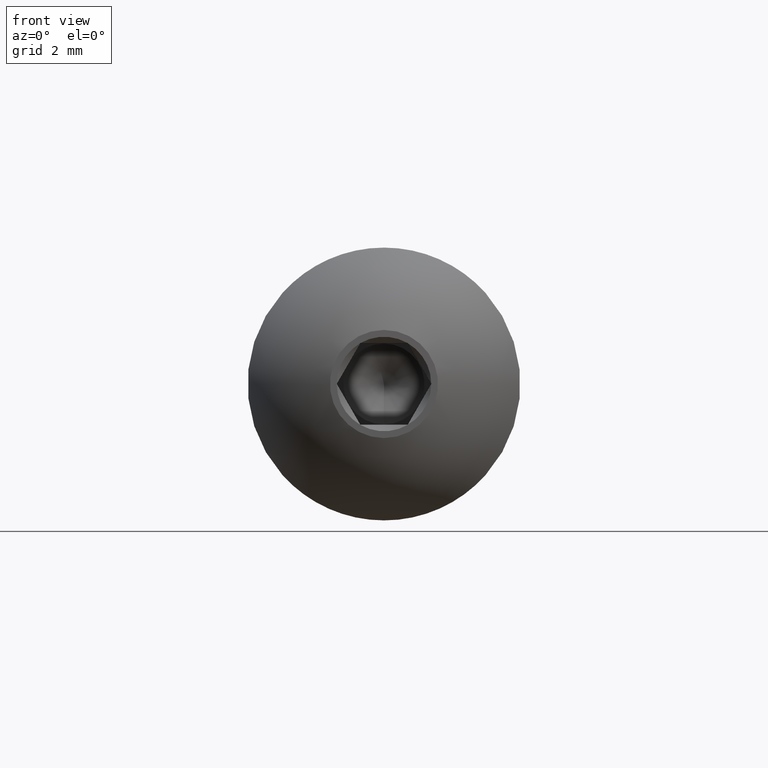
[diagram: clean part render]
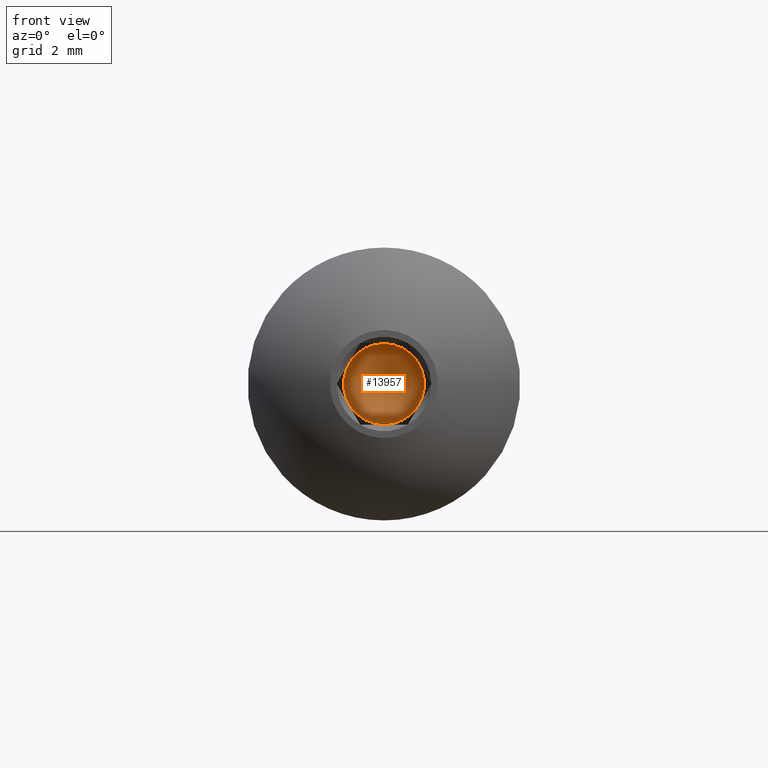
[diagram: same view with one face highlighted and labeled with its STEP entity id]
A machine part, front view. The second image highlights one B-rep face of the part: STEP entity #13957.
In plain terms, the highlighted conical surface has half-angle 59 deg.
Its self-contained STEP definition (entity closure, byte-faithful):
#62 = CONICAL_SURFACE ( 'NONE', #1173, 1.484999999999999400, 1.029744258676657400 ) ;
#318 = CARTESIAN_POINT ( 'NONE',  ( 0.0000000000000000000, 1.749999999999999800, 0.0000000000000000000 ) ) ;
#1173 = AXIS2_PLACEMENT_3D ( 'NONE', #1545, #10669, #11841 ) ;
#1429 = DIRECTION ( 'NONE',  ( 0.0000000000000000000, 0.0000000000000000000, -1.000000000000000000 ) ) ;
#1545 = CARTESIAN_POINT ( 'NONE',  ( 0.0000000000000000000, 1.749999999999999800, 0.0000000000000000000 ) ) ;
#2175 = VERTEX_POINT ( 'NONE', #3846 ) ;
#3030 = EDGE_CURVE ( 'NONE', #2175, #2175, #6781, .T. ) ;
#3675 = EDGE_LOOP ( 'NONE', ( #9756 ) ) ;
#3846 = CARTESIAN_POINT ( 'NONE',  ( 0.0000000000000000000, 1.749999999999999800, -1.484999999999999700 ) ) ;
#6781 = CIRCLE ( 'NONE', #9742, 1.484999999999999700 ) ;
#9447 = DIRECTION ( 'NONE',  ( -0.0000000000000000000, 1.000000000000000000, -0.0000000000000000000 ) ) ;
#9742 = AXIS2_PLACEMENT_3D ( 'NONE', #318, #9447, #1429 ) ;
#9756 = ORIENTED_EDGE ( 'NONE', *, *, #3030, .F. ) ;
#10416 = FACE_OUTER_BOUND ( 'NONE', #3675, .T. ) ;
#10669 = DIRECTION ( 'NONE',  ( -0.0000000000000000000, -1.000000000000000000, -0.0000000000000000000 ) ) ;
#11841 = DIRECTION ( 'NONE',  ( 0.0000000000000000000, 0.0000000000000000000, -1.000000000000000000 ) ) ;
#13957 = ADVANCED_FACE ( 'NONE', ( #10416 ), #62, .F. ) ;